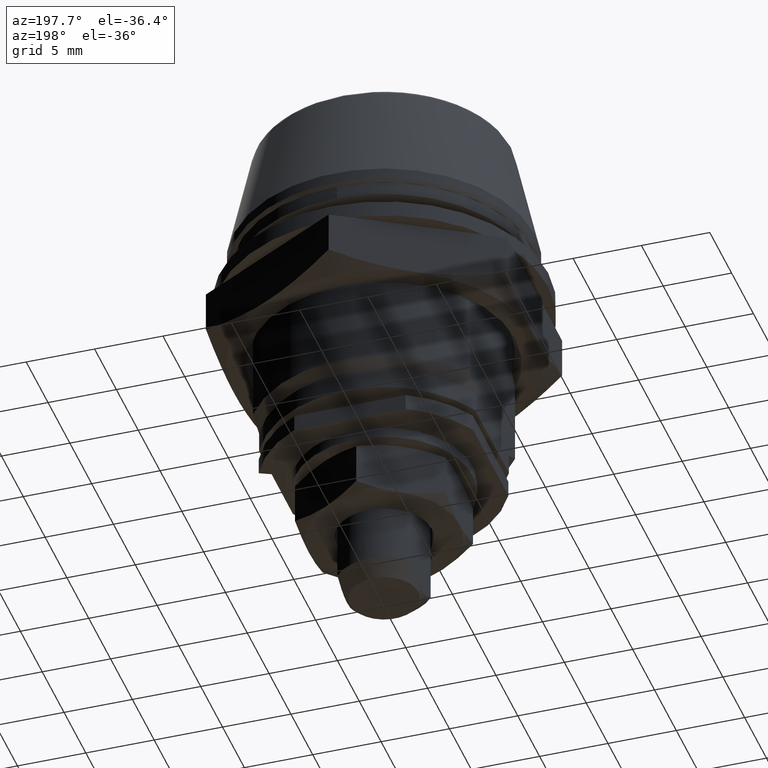
[diagram: clean part render]
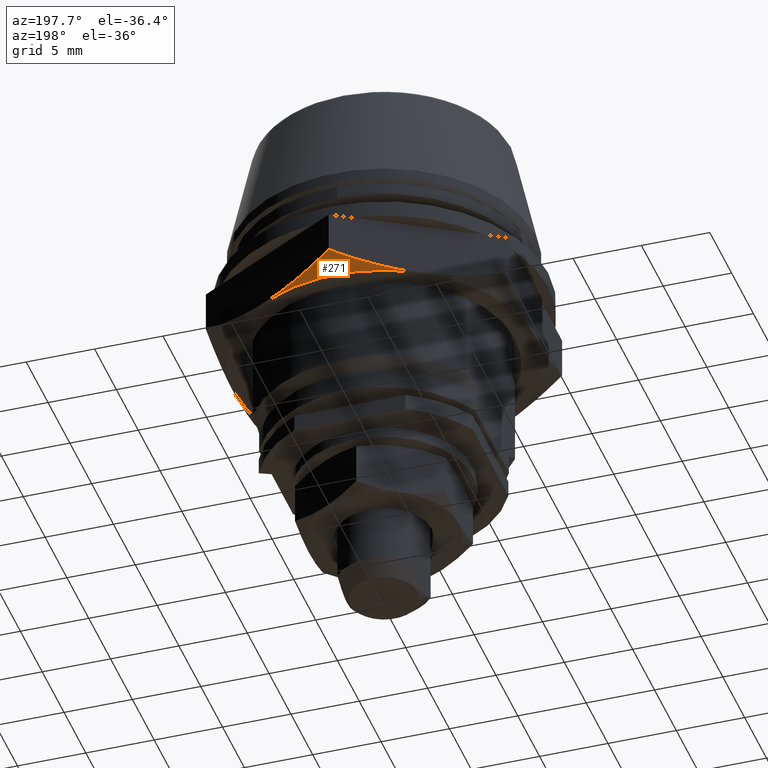
[diagram: same view with one face highlighted and labeled with its STEP entity id]
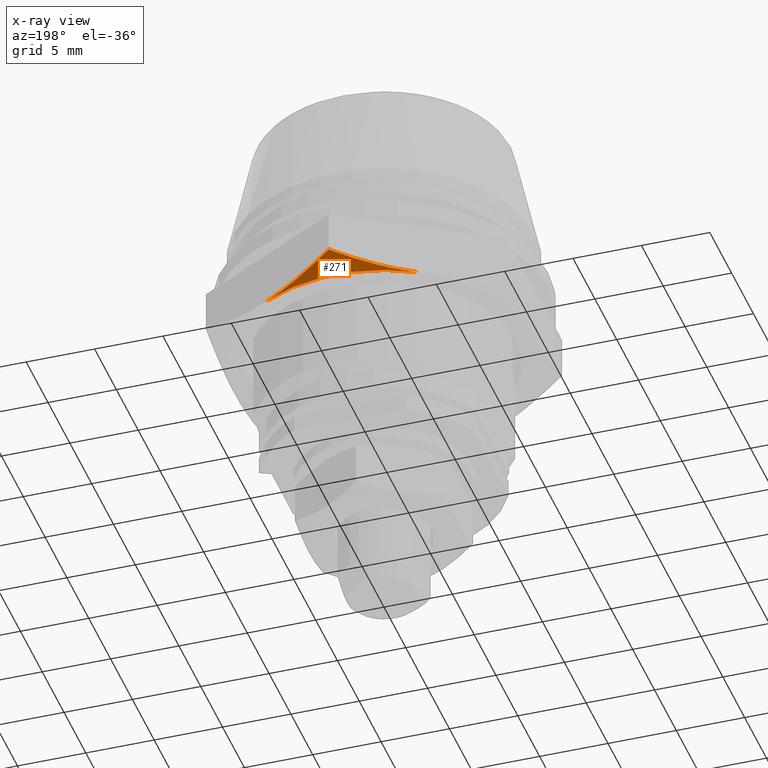
[diagram: x-ray of the same camera — body ghosted, the highlighted face saturated]
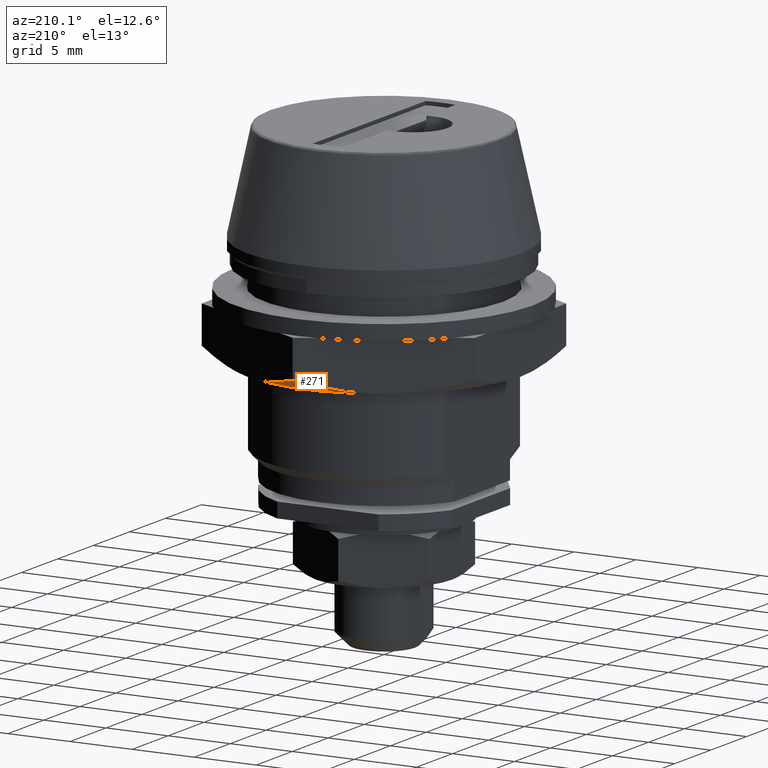
[diagram: same view with one face highlighted and labeled with its STEP entity id]
A machine part, auxiliary view. The second image highlights one B-rep face of the part: STEP entity #271.
The next image is the same camera in x-ray: the body ghosted, the highlighted face saturated — about 0% of this face is hidden behind the body in this view.
A second angle (auxiliary view) of the same face is appended — the face is thin or edge-on in the first view.
In plain terms, the highlighted face is a freeform B-spline surface patch.
Its self-contained STEP definition (entity closure, byte-faithful):
#271=ADVANCED_FACE('',(#527),#526,.T.);
#526=( BOUNDED_SURFACE() B_SPLINE_SURFACE( 2,1,((#2024,#2025),(#2026,#2027),(#2028,#2029)), .UNSPECIFIED.,.F.,.F.,.F.) B_SPLINE_SURFACE_WITH_KNOTS((3,3),(2,2),(0.00000000000E+000,1.00000000000E+000),(0.00000000000E+000,1.00000000000E+000), .UNSPECIFIED. ) GEOMETRIC_REPRESENTATION_ITEM() RATIONAL_B_SPLINE_SURFACE(((1.00000000000E+000,1.00000000000E+000),(8.65923473414E-001,8.65923473414E-001),(1.00000000000E+000,1.00000000000E+000))) REPRESENTATION_ITEM('') SURFACE() );
#527=FACE_OUTER_BOUND('',#2030,.T.);
#2024=CARTESIAN_POINT('',(7.67083750200E-015,-7.73209208664E-015,-1.73508529569E+001));
#2025=CARTESIAN_POINT('',(7.28463045619E+000,1.26114549668E+001,-8.94223362943E+000));
#2026=CARTESIAN_POINT('',(7.67083750200E-015,-7.73209208664E-015,-1.73508529569E+001));
#2027=CARTESIAN_POINT('',(-2.42362757146E-005,1.68192182721E+001,-8.94223362943E+000));
#2028=CARTESIAN_POINT('',(7.67083750200E-015,-7.73209208664E-015,-1.73508529569E+001));
#2029=CARTESIAN_POINT('',(-7.28466680204E+000,1.26114339726E+001,-8.94223362943E+000));
#2030=EDGE_LOOP('',(#2948,#2949,#2950));
#2948=ORIENTED_EDGE('',*,*,#3702,.F.);
#2949=ORIENTED_EDGE('',*,*,#3703,.T.);
#2950=ORIENTED_EDGE('',*,*,#3704,.T.);
#3702=EDGE_CURVE('',#4257,#4270,#4271,.T.);
#3703=EDGE_CURVE('',#4257,#4277,#4278,.T.);
#3704=EDGE_CURVE('',#4277,#4270,#4284,.T.);
#4257=VERTEX_POINT('',#6728);
#4270=VERTEX_POINT('',#6737);
#4271=(BOUNDED_CURVE() B_SPLINE_CURVE(3,(#6738,#6739,#6740,#6741),.UNSPECIFIED.,.F.,.F.) B_SPLINE_CURVE_WITH_KNOTS((4,4),(0.00000000000E+000,1.00000000000E+000),.UNSPECIFIED.) CURVE() GEOMETRIC_REPRESENTATION_ITEM() RATIONAL_B_SPLINE_CURVE((1.00000000000E+000,1.00000000000E+000,1.00000000000E+000,1.00000000000E+000)) REPRESENTATION_ITEM('') );
#4277=VERTEX_POINT('',#6742);
#4278=CIRCLE('',#6746,1.10000000003E+001);
#4284=(BOUNDED_CURVE() B_SPLINE_CURVE(3,(#6747,#6748,#6749,#6750),.UNSPECIFIED.,.F.,.F.) B_SPLINE_CURVE_WITH_KNOTS((4,4),(0.00000000000E+000,1.00000000000E+000),.UNSPECIFIED.) CURVE() GEOMETRIC_REPRESENTATION_ITEM() RATIONAL_B_SPLINE_CURVE((1.00000000000E+000,1.00000000000E+000,1.00000000000E+000,1.00000000000E+000)) REPRESENTATION_ITEM('') );
#6728=CARTESIAN_POINT('',(5.50000000000E+000,9.52627944200E+000,-1.10000000000E+001));
#6737=CARTESIAN_POINT('',(0.00000000000E+000,1.27017059220E+001,-1.00175196280E+001));
#6738=CARTESIAN_POINT('',(5.50000000000E+000,9.52627944200E+000,-1.10000000000E+001));
#6739=CARTESIAN_POINT('',(3.63293310100E+000,1.06042310190E+001,-1.10000000000E+001));
#6740=CARTESIAN_POINT('',(1.79496199100E+000,1.16653841340E+001,-1.06158402910E+001));
#6741=CARTESIAN_POINT('',(0.00000000000E+000,1.27017059220E+001,-1.00175196280E+001));
#6742=CARTESIAN_POINT('',(-5.49999999992E+000,9.52627944186E+000,-1.10000000000E+001));
#6743=CARTESIAN_POINT('',(0.00000000000E+000,0.00000000000E+000,-1.10000000000E+001));
#6744=DIRECTION('',(0.00000000000E+000,-0.00000000000E+000,1.00000000000E+000));
#6745=DIRECTION('',(-4.99999999985E-001,-8.66025403793E-001,-0.00000000000E+000));
#6746=AXIS2_PLACEMENT_3D('',#6743,#6744,#6745);
#6747=CARTESIAN_POINT('',(-5.50000000000E+000,9.52627944200E+000,-1.10000000000E+001));
#6748=CARTESIAN_POINT('',(-3.62592577400E+000,1.06082767010E+001,-1.10000000000E+001));
#6749=CARTESIAN_POINT('',(-1.79945551000E+000,1.16627897990E+001,-1.06173381310E+001));
#6750=CARTESIAN_POINT('',(0.00000000000E+000,1.27017059220E+001,-1.00175196280E+001));